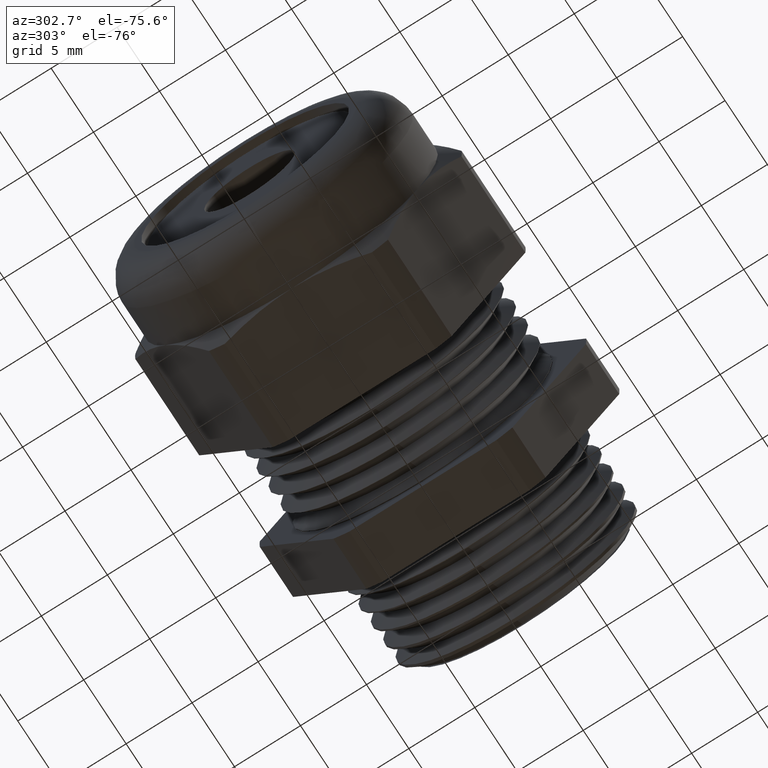
[diagram: clean part render]
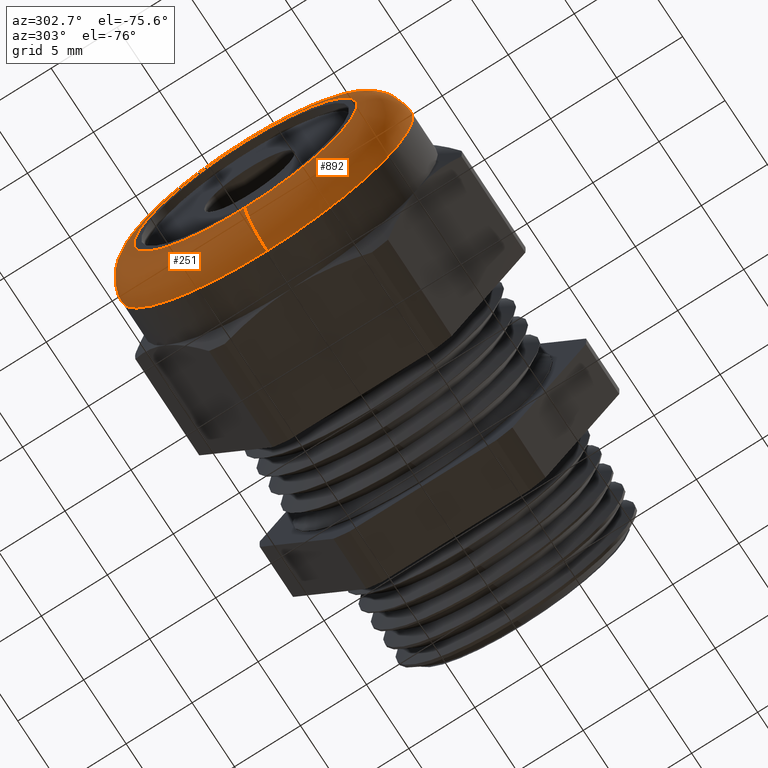
[diagram: same view with one multi-face feature highlighted, each face labeled with its STEP entity id]
A machine part, auxiliary view. The highlighted faces form ONE feature: a constant-radius fillet chain: 2 tangent blend faces with common blend radius 2.5959 mm. The faces share edges in the B-rep.
Their STEP definitions:
[1] entity #251 (Torus):
#169 = ORIENTED_EDGE ( 'NONE', *, *, #170, .F. ) ;
#170 = EDGE_CURVE ( 'NONE', #171, #172, #1185, .T. ) ;
#171 = VERTEX_POINT ( 'NONE', #1243 ) ;
#172 = VERTEX_POINT ( 'NONE', #1242 ) ;
#233 = ORIENTED_EDGE ( 'NONE', *, *, #234, .T. ) ;
#234 = EDGE_CURVE ( 'NONE', #171, #235, #1333, .T. ) ;
#235 = VERTEX_POINT ( 'NONE', #1328 ) ;
#236 = ORIENTED_EDGE ( 'NONE', *, *, #237, .F. ) ;
#237 = EDGE_CURVE ( 'NONE', #238, #235, #1327, .T. ) ;
#238 = VERTEX_POINT ( 'NONE', #1322 ) ;
#239 = ORIENTED_EDGE ( 'NONE', *, *, #240, .F. ) ;
#240 = EDGE_CURVE ( 'NONE', #172, #238, #1320, .T. ) ;
#251 = ADVANCED_FACE ( 'NONE', ( #1358 ), #1357, .T. ) ;
#252 = EDGE_LOOP ( 'NONE', ( #169, #233, #236, #239 ) ) ;
#1185 = CIRCLE ( 'NONE', #1246, 0.3327999999999998700 ) ;
#1189 = CARTESIAN_POINT ( 'NONE',  ( -0.9799999999999999800, 0.0000000000000000000, 0.0000000000000000000 ) ) ;
#1242 = CARTESIAN_POINT ( 'NONE',  ( -0.9799999999999999800, 0.0000000000000000000, -0.3327999999999998700 ) ) ;
#1243 = CARTESIAN_POINT ( 'NONE',  ( -0.9799999999999999800, 4.701419061926686900E-017, 0.3327999999999998700 ) ) ;
#1244 = DIRECTION ( 'NONE',  ( 0.0000000000000000000, 0.0000000000000000000, -1.000000000000000000 ) ) ;
#1245 = DIRECTION ( 'NONE',  ( -1.000000000000000000, 0.0000000000000000000, 0.0000000000000000000 ) ) ;
#1246 = AXIS2_PLACEMENT_3D ( 'NONE', #1189, #1245, #1244 ) ;
#1316 = DIRECTION ( 'NONE',  ( 0.0000000000000000000, 0.0000000000000000000, -1.000000000000000000 ) ) ;
#1317 = DIRECTION ( 'NONE',  ( 0.0000000000000000000, -1.000000000000000000, 0.0000000000000000000 ) ) ;
#1318 = CARTESIAN_POINT ( 'NONE',  ( -0.8777999999999998000, 0.0000000000000000000, -0.3327999999999998700 ) ) ;
#1319 = AXIS2_PLACEMENT_3D ( 'NONE', #1318, #1317, #1316 ) ;
#1320 = CIRCLE ( 'NONE', #1319, 0.1022000000000000000 ) ;
#1322 = CARTESIAN_POINT ( 'NONE',  ( -0.8777999999999998000, 5.327213576290984500E-017, -0.4349999999999998900 ) ) ;
#1323 = DIRECTION ( 'NONE',  ( 0.0000000000000000000, 0.0000000000000000000, -1.000000000000000000 ) ) ;
#1324 = DIRECTION ( 'NONE',  ( 1.000000000000000000, 0.0000000000000000000, 0.0000000000000000000 ) ) ;
#1325 = CARTESIAN_POINT ( 'NONE',  ( -0.8777999999999998000, 0.0000000000000000000, 0.0000000000000000000 ) ) ;
#1326 = AXIS2_PLACEMENT_3D ( 'NONE', #1325, #1324, #1323 ) ;
#1327 = CIRCLE ( 'NONE', #1326, 0.4349999999999998900 ) ;
#1328 = CARTESIAN_POINT ( 'NONE',  ( -0.8777999999999998000, 0.0000000000000000000, 0.4349999999999998900 ) ) ;
#1329 = DIRECTION ( 'NONE',  ( 0.0000000000000000000, 1.224646799147353500E-016, 1.000000000000000000 ) ) ;
#1330 = DIRECTION ( 'NONE',  ( 0.0000000000000000000, 1.000000000000000000, -1.224646799147353200E-016 ) ) ;
#1331 = CARTESIAN_POINT ( 'NONE',  ( -0.8777999999999998000, 4.075624547562390000E-017, 0.3327999999999998700 ) ) ;
#1332 = AXIS2_PLACEMENT_3D ( 'NONE', #1331, #1330, #1329 ) ;
#1333 = CIRCLE ( 'NONE', #1332, 0.1022000000000000000 ) ;
#1353 = DIRECTION ( 'NONE',  ( 0.0000000000000000000, 0.0000000000000000000, -1.000000000000000000 ) ) ;
#1354 = DIRECTION ( 'NONE',  ( 1.000000000000000000, 0.0000000000000000000, 0.0000000000000000000 ) ) ;
#1355 = CARTESIAN_POINT ( 'NONE',  ( -0.8777999999999998000, 0.0000000000000000000, 0.0000000000000000000 ) ) ;
#1356 = AXIS2_PLACEMENT_3D ( 'NONE', #1355, #1354, #1353 ) ;
#1357 = TOROIDAL_SURFACE ( 'NONE', #1356, 0.3327999999999998700, 0.1022000000000000300 ) ;
#1358 = FACE_OUTER_BOUND ( 'NONE', #252, .T. ) ;
[2] entity #892 (Torus):
#171 = VERTEX_POINT ( 'NONE', #1243 ) ;
#172 = VERTEX_POINT ( 'NONE', #1242 ) ;
#234 = EDGE_CURVE ( 'NONE', #171, #235, #1333, .T. ) ;
#235 = VERTEX_POINT ( 'NONE', #1328 ) ;
#238 = VERTEX_POINT ( 'NONE', #1322 ) ;
#240 = EDGE_CURVE ( 'NONE', #172, #238, #1320, .T. ) ;
#784 = EDGE_CURVE ( 'NONE', #172, #171, #2313, .T. ) ;
#828 = EDGE_CURVE ( 'NONE', #235, #238, #2389, .T. ) ;
#892 = ADVANCED_FACE ( 'NONE', ( #2474 ), #2472, .T. ) ;
#893 = EDGE_LOOP ( 'NONE', ( #894, #895, #937, #938 ) ) ;
#894 = ORIENTED_EDGE ( 'NONE', *, *, #234, .F. ) ;
#895 = ORIENTED_EDGE ( 'NONE', *, *, #784, .F. ) ;
#937 = ORIENTED_EDGE ( 'NONE', *, *, #240, .T. ) ;
#938 = ORIENTED_EDGE ( 'NONE', *, *, #828, .F. ) ;
#1242 = CARTESIAN_POINT ( 'NONE',  ( -0.9799999999999999800, 0.0000000000000000000, -0.3327999999999998700 ) ) ;
#1243 = CARTESIAN_POINT ( 'NONE',  ( -0.9799999999999999800, 4.701419061926686900E-017, 0.3327999999999998700 ) ) ;
#1316 = DIRECTION ( 'NONE',  ( 0.0000000000000000000, 0.0000000000000000000, -1.000000000000000000 ) ) ;
#1317 = DIRECTION ( 'NONE',  ( 0.0000000000000000000, -1.000000000000000000, 0.0000000000000000000 ) ) ;
#1318 = CARTESIAN_POINT ( 'NONE',  ( -0.8777999999999998000, 0.0000000000000000000, -0.3327999999999998700 ) ) ;
#1319 = AXIS2_PLACEMENT_3D ( 'NONE', #1318, #1317, #1316 ) ;
#1320 = CIRCLE ( 'NONE', #1319, 0.1022000000000000000 ) ;
#1322 = CARTESIAN_POINT ( 'NONE',  ( -0.8777999999999998000, 5.327213576290984500E-017, -0.4349999999999998900 ) ) ;
#1328 = CARTESIAN_POINT ( 'NONE',  ( -0.8777999999999998000, 0.0000000000000000000, 0.4349999999999998900 ) ) ;
#1329 = DIRECTION ( 'NONE',  ( 0.0000000000000000000, 1.224646799147353500E-016, 1.000000000000000000 ) ) ;
#1330 = DIRECTION ( 'NONE',  ( 0.0000000000000000000, 1.000000000000000000, -1.224646799147353200E-016 ) ) ;
#1331 = CARTESIAN_POINT ( 'NONE',  ( -0.8777999999999998000, 4.075624547562390000E-017, 0.3327999999999998700 ) ) ;
#1332 = AXIS2_PLACEMENT_3D ( 'NONE', #1331, #1330, #1329 ) ;
#1333 = CIRCLE ( 'NONE', #1332, 0.1022000000000000000 ) ;
#2311 = CARTESIAN_POINT ( 'NONE',  ( -0.9799999999999999800, 0.0000000000000000000, 0.0000000000000000000 ) ) ;
#2312 = AXIS2_PLACEMENT_3D ( 'NONE', #2311, #2373, #2372 ) ;
#2313 = CIRCLE ( 'NONE', #2312, 0.3327999999999998700 ) ;
#2372 = DIRECTION ( 'NONE',  ( 0.0000000000000000000, 0.0000000000000000000, -1.000000000000000000 ) ) ;
#2373 = DIRECTION ( 'NONE',  ( -1.000000000000000000, 0.0000000000000000000, 0.0000000000000000000 ) ) ;
#2385 = DIRECTION ( 'NONE',  ( 0.0000000000000000000, 0.0000000000000000000, -1.000000000000000000 ) ) ;
#2386 = DIRECTION ( 'NONE',  ( 1.000000000000000000, 0.0000000000000000000, 0.0000000000000000000 ) ) ;
#2387 = CARTESIAN_POINT ( 'NONE',  ( -0.8777999999999998000, 0.0000000000000000000, 0.0000000000000000000 ) ) ;
#2388 = AXIS2_PLACEMENT_3D ( 'NONE', #2387, #2386, #2385 ) ;
#2389 = CIRCLE ( 'NONE', #2388, 0.4349999999999998900 ) ;
#2471 = AXIS2_PLACEMENT_3D ( 'NONE', #2473, #2532, #2531 ) ;
#2472 = TOROIDAL_SURFACE ( 'NONE', #2471, 0.3327999999999998700, 0.1022000000000000300 ) ;
#2473 = CARTESIAN_POINT ( 'NONE',  ( -0.8777999999999998000, 0.0000000000000000000, 0.0000000000000000000 ) ) ;
#2474 = FACE_OUTER_BOUND ( 'NONE', #893, .T. ) ;
#2531 = DIRECTION ( 'NONE',  ( 0.0000000000000000000, 0.0000000000000000000, -1.000000000000000000 ) ) ;
#2532 = DIRECTION ( 'NONE',  ( 1.000000000000000000, 0.0000000000000000000, 0.0000000000000000000 ) ) ;